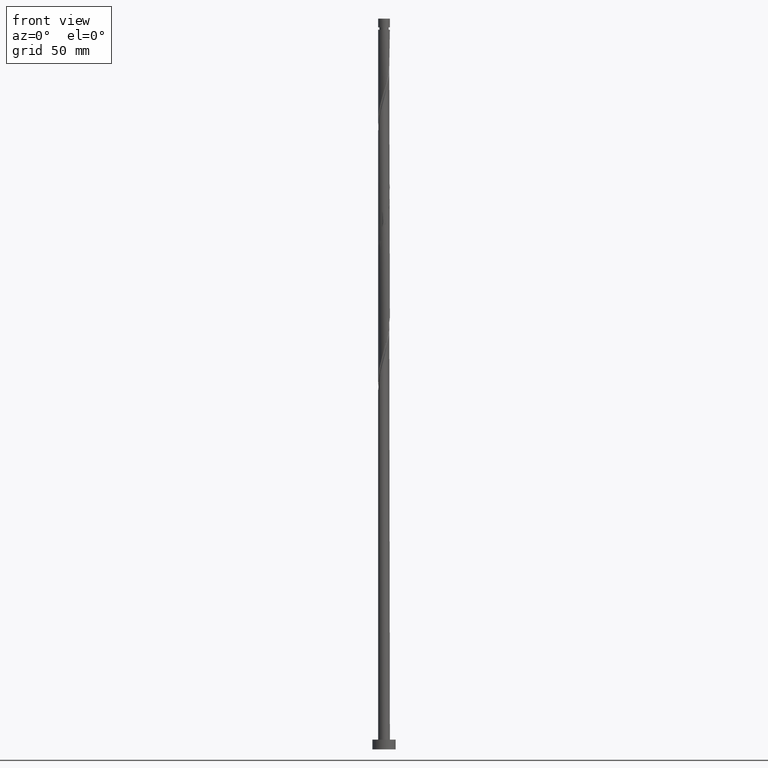
[diagram: clean part render]
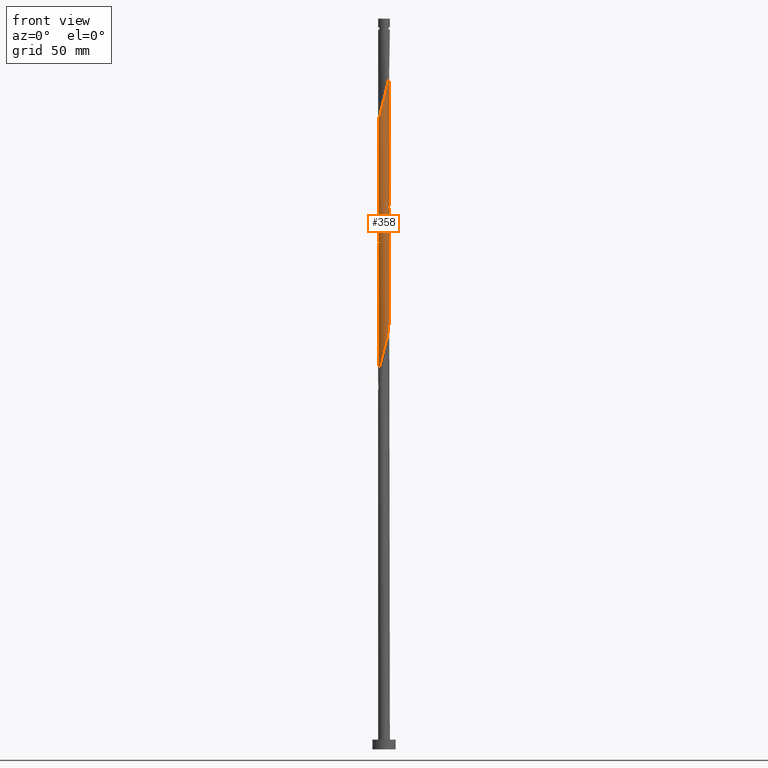
[diagram: same view with one face highlighted and labeled with its STEP entity id]
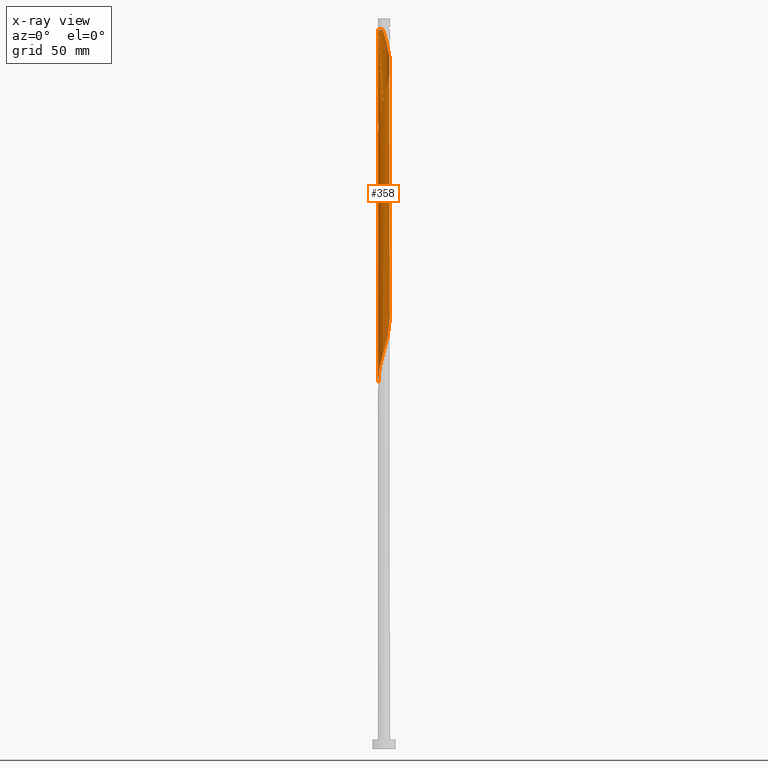
[diagram: x-ray of the same camera — body ghosted, the highlighted face saturated]
A machine part, front view. The second image highlights one B-rep face of the part: STEP entity #358.
The next image is the same camera in x-ray: the body ghosted, the highlighted face saturated — about 0% of this face is hidden behind the body in this view.
In plain terms, the highlighted cylindrical surface (bore or boss wall) has radius 3 mm, axis along (-0, -0, -1).
Its self-contained STEP definition (entity closure, byte-faithful):
#2 = CARTESIAN_POINT ( 'NONE',  ( 0.2879860105828859207, 3.002746436205627756, 304.4682028779818097 ) ) ;
#5 = CARTESIAN_POINT ( 'NONE',  ( 2.956194341916741575, 0.6002808636434363576, 353.3570917668706670 ) ) ;
#18 = CARTESIAN_POINT ( 'NONE',  ( 0.9059989139450633777, -2.877253563794377023, 337.8015362113151241 ) ) ;
#25 = CARTESIAN_POINT ( 'NONE',  ( 0.9582386936374892583, -2.860279830445433991, 275.5793139890928956 ) ) ;
#29 = CARTESIAN_POINT ( 'NONE',  ( -2.956194341916741575, -0.6002808636434368017, 320.0237584335374095 ) ) ;
#34 =( BOUNDED_CURVE ( )  B_SPLINE_CURVE ( 2, ( #460, #724, #1482, #737, #877, #161, #885, #295, #450, #1313, #1463, #1145, #756, #25, #1744, #605, #1891, #432, #1023, #612, #587, #1733, #418, #1157, #1756, #441, #364, #1799, #912, #1494, #325, #191, #1194, #799, #1213, #622, #776, #1079, #1811, #1677, #767, #1046, #1386, #337, #1375, #808, #354, #1514, #1353, #173, #71, #491, #1185, #940, #1205, #60, #1531, #1054, #1647, #1780, #787, #655, #1063, #1665, #1222, #1363, #182, #903, #1504, #44, #469, #212, #1524, #1071, #1638, #632, #1820, #1655, #1341, #920, #347, #513, #52, #36, #643, #501, #1790, #931, #481, #202, #393, #970, #1562 ),
 .UNSPECIFIED., .F., .T. ) 
 B_SPLINE_CURVE_WITH_KNOTS ( ( 3, 2, 2, 2, 2, 2, 2, 2, 2, 2, 2, 2, 2, 2, 2, 2, 2, 2, 2, 2, 2, 2, 2, 2, 2, 2, 2, 2, 2, 2, 2, 2, 2, 2, 2, 2, 2, 2, 2, 2, 2, 2, 2, 2, 2, 2, 3 ),
 ( 0.5545286012773114059, 0.5583333333333333481, 0.5666666666666666519, 0.5749999999999999556, 0.5833333333333333703, 0.5916666666666666741, 0.5999999999999999778, 0.6083333333333332815, 0.6166666666666666963, 0.6250000000000000000, 0.6333333333333333037, 0.6416666666666667185, 0.6500000000000000222, 0.6583333333333333259, 0.6666666666666666297, 0.6750000000000000444, 0.6833333333333333481, 0.6916666666666666519, 0.6999999999999999556, 0.7083333333333333703, 0.7166666666666666741, 0.7249999999999999778, 0.7333333333333332815, 0.7416666666666666963, 0.7500000000000000000, 0.7583333333333333037, 0.7666666666666667185, 0.7750000000000000222, 0.7833333333333333259, 0.7916666666666666297, 0.8000000000000000444, 0.8083333333333333481, 0.8166666666666666519, 0.8249999999999999556, 0.8333333333333333703, 0.8416666666666666741, 0.8499999999999999778, 0.8583333333333332815, 0.8666666666666666963, 0.8750000000000000000, 0.8833333333333333037, 0.8916666666666668295, 0.9000000000000001332, 0.9083333333333334370, 0.9166666666666667407, 0.9250000000000000444, 0.9295286012773114059 ),
 .UNSPECIFIED. ) 
 CURVE ( )  GEOMETRIC_REPRESENTATION_ITEM ( )  RATIONAL_B_SPLINE_CURVE ( ( 0.9066196499552419130, 0.9068171577856546373, 0.9090909090909534696, 0.9041108139712019653, 0.9090909090909534696, 0.9041108139712019653, 0.9090909090909534696, 0.9041108139712019653, 0.9090909090909534696, 0.9041108139712019653, 0.9090909090909534696, 0.9041108139712019653, 0.9090909090909534696, 0.9041108139712019653, 0.9090909090909534696, 0.9041108139712019653, 0.9090909090909534696, 0.9041108139712019653, 0.9090909090909534696, 0.9041108139712019653, 0.9090909090909534696, 0.9041108139712019653, 0.9090909090909534696, 0.9041108139712019653, 0.9090909090909534696, 0.9041108139712019653, 0.9090909090909534696, 0.9041108139712019653, 0.9090909090909534696, 0.9041108139712019653, 0.9090909090909534696, 0.9041108139712019653, 0.9090909090909534696, 0.9041108139712019653, 0.9090909090909534696, 0.9041108139712019653, 0.9090909090909534696, 0.9041108139712019653, 0.9090909090909534696, 0.9041108139712019653, 0.9090909090909534696, 0.9041108139712019653, 0.9090909090909534696, 0.9041108139712019653, 0.9090909090909534696, 0.9041108139712019653, 0.9090909090909534696, 0.9041108139712019653, 0.9090909090909534696, 0.9041108139712019653, 0.9090909090909534696, 0.9041108139712019653, 0.9090909090909534696, 0.9041108139712019653, 0.9090909090909534696, 0.9041108139712019653, 0.9090909090909534696, 0.9041108139712019653, 0.9090909090909534696, 0.9041108139712019653, 0.9090909090909534696, 0.9041108139712019653, 0.9090909090909534696, 0.9041108139712019653, 0.9090909090909534696, 0.9041108139712019653, 0.9090909090909534696, 0.9041108139712019653, 0.9090909090909534696, 0.9041108139712019653, 0.9090909090909534696, 0.9041108139712019653, 0.9090909090909534696, 0.9041108139712019653, 0.9090909090909534696, 0.9041108139712019653, 0.9090909090909534696, 0.9041108139712019653, 0.9090909090909534696, 0.9041108139712019653, 0.9090909090909534696, 0.9041108139712019653, 0.9090909090909534696, 0.9041108139712019653, 0.9090909090909534696, 0.9041108139712019653, 0.9090909090909534696, 0.9041108139712019653, 0.9090909090909534696, 0.9041108139712019653, 0.9090909090909534696, 0.9063845652765007976, 0.9066196499552419130 ) ) 
 REPRESENTATION_ITEM ( '' )  );
#36 = CARTESIAN_POINT ( 'NONE',  ( -1.997955648279248209, -2.259998966801996190, 197.8015362113151809 ) ) ;
#44 = CARTESIAN_POINT ( 'NONE',  ( 2.038775222402703591, -2.223244857174722533, 213.3570917668706954 ) ) ;
#52 = CARTESIAN_POINT ( 'NONE',  ( -1.741185482790979400, -2.443004935426440483, 198.9126473224262952 ) ) ;
#60 = CARTESIAN_POINT ( 'NONE',  ( 2.424175730171094223, 1.795214230025620417, 228.9126473224262668 ) ) ;
#65 = CARTESIAN_POINT ( 'NONE',  ( 3.000000000000000444, 3.673940397442060361E-16, 375.6999999999999886 ) ) ;
#67 = DIRECTION ( 'NONE',  ( -0.000000000000000000, -0.000000000000000000, -1.000000000000000000 ) ) ;
#71 = CARTESIAN_POINT ( 'NONE',  ( 1.195207115623888150, 2.751632233922627346, 234.4682028779818950 ) ) ;
#105 =( BOUNDED_CURVE ( )  B_SPLINE_CURVE ( 2, ( #579, #872, #759, #29, #328, #608, #1180, #1775, #1748, #436, #616, #1885, #599, #1611, #1460, #1009, #890, #1160, #1485, #18, #1018, #1783, #1037, #473, #143, #1631, #298, #1466, #150, #310, #740, #1317, #319, #5, #1169, #453, #898, #1028, #1623, #1476, #164, #1236, #1083, #1357, #1545, #916, #1209, #1066, #1095 ),
 .UNSPECIFIED., .F., .T. ) 
 B_SPLINE_CURVE_WITH_KNOTS ( ( 3, 2, 2, 2, 2, 2, 2, 2, 2, 2, 2, 2, 2, 2, 2, 2, 2, 2, 2, 2, 2, 2, 2, 2, 3 ),
 ( 0.5545286012773114059, 0.5583333333333333481, 0.5666666666666666519, 0.5749999999999999556, 0.5833333333333332593, 0.5916666666666667851, 0.6000000000000000888, 0.6083333333333335036, 0.6166666666666668073, 0.6250000000000001110, 0.6333333333333334147, 0.6416666666666667185, 0.6500000000000001332, 0.6583333333333335480, 0.6666666666666669627, 0.6750000000000002665, 0.6833333333333335702, 0.6916666666666668739, 0.7000000000000001776, 0.7083333333333334814, 0.7166666666666670071, 0.7250000000000003109, 0.7333333333333337256, 0.7416666666666670293, 0.7500000000000003331 ),
 .UNSPECIFIED. ) 
 CURVE ( )  GEOMETRIC_REPRESENTATION_ITEM ( )  RATIONAL_B_SPLINE_CURVE ( ( 0.9066196499552482413, 0.9068171577856609655, 0.9090909090909599088, 0.9041108139712081826, 0.9090909090909599088, 0.9041108139712081826, 0.9090909090909599088, 0.9041108139712081826, 0.9090909090909599088, 0.9041108139712081826, 0.9090909090909599088, 0.9041108139712081826, 0.9090909090909599088, 0.9041108139712081826, 0.9090909090909599088, 0.9041108139712081826, 0.9090909090909599088, 0.9041108139712081826, 0.9090909090909599088, 0.9041108139712081826, 0.9090909090909599088, 0.9041108139712081826, 0.9090909090909599088, 0.9041108139712081826, 0.9090909090909599088, 0.9041108139712081826, 0.9090909090909599088, 0.9041108139712081826, 0.9090909090909599088, 0.9041108139712081826, 0.9090909090909599088, 0.9041108139712081826, 0.9090909090909599088, 0.9041108139712081826, 0.9090909090909599088, 0.9041108139712081826, 0.9090909090909599088, 0.9041108139712081826, 0.9090909090909599088, 0.9041108139712081826, 0.9090909090909599088, 0.9041108139712081826, 0.9090909090909599088, 0.9041108139712081826, 0.9090909090909599088, 0.9041108139712081826, 0.9090909090909599088, 0.9041108139712079605, 0.9090909090909601309 ) ) 
 REPRESENTATION_ITEM ( '' )  );
#113 = CARTESIAN_POINT ( 'NONE',  ( -2.861491667719897602, 0.9010357570982424624, 318.9126473224263805 ) ) ;
#140 = CARTESIAN_POINT ( 'NONE',  ( 1.484415317302709703, 2.626010904050883443, 300.0237584335374095 ) ) ;
#143 = CARTESIAN_POINT ( 'NONE',  ( 2.211065689225174324, -2.027606598413813632, 343.3570917668708375 ) ) ;
#147 = CARTESIAN_POINT ( 'NONE',  ( -1.785379858637177630, 2.410895841875524859, 312.2459806557596949 ) ) ;
#150 = CARTESIAN_POINT ( 'NONE',  ( 2.844610918258241306, -0.9529893618115785614, 347.8015362113152378 ) ) ;
#153 = CARTESIAN_POINT ( 'NONE',  ( 0.9059989139450659312, 2.877253563794370361, 302.2459806557595812 ) ) ;
#161 = CARTESIAN_POINT ( 'NONE',  ( 2.766788993523056295, -1.201790650553047790, 284.4682028779818665 ) ) ;
#164 = CARTESIAN_POINT ( 'NONE',  ( 1.785379858637182515, 2.410895841875527079, 361.1348695446486090 ) ) ;
#171 =( BOUNDED_CURVE ( )  B_SPLINE_CURVE ( 2, ( #1123, #406, #1574, #258, #113, #703, #1275, #996, #574, #287, #147, #1005, #1166, #1608, #595, #1589, #1331, #2, #861, #153, #869, #140, #1293, #1456, #1599, #307, #1323, #1015, #1175, #1762, #1472, #316, #277 ),
 .UNSPECIFIED., .F., .T. ) 
 B_SPLINE_CURVE_WITH_KNOTS ( ( 3, 2, 2, 2, 2, 2, 2, 2, 2, 2, 2, 2, 2, 2, 2, 2, 3 ),
 ( 0.4295286012773115170, 0.4333333333333333481, 0.4416666666666666519, 0.4500000000000000111, 0.4583333333333333148, 0.4666666666666666741, 0.4749999999999999778, 0.4833333333333333370, 0.4916666666666666408, 0.5000000000000000000, 0.5083333333333333037, 0.5166666666666667185, 0.5250000000000000222, 0.5333333333333333259, 0.5416666666666666297, 0.5500000000000000444, 0.5545286012773114059 ),
 .UNSPECIFIED. ) 
 CURVE ( )  GEOMETRIC_REPRESENTATION_ITEM ( )  RATIONAL_B_SPLINE_CURVE ( ( 0.9066196499552419130, 0.9068171577856547483, 0.9090909090909534696, 0.9041108139712019653, 0.9090909090909534696, 0.9041108139712019653, 0.9090909090909534696, 0.9041108139712019653, 0.9090909090909534696, 0.9041108139712019653, 0.9090909090909534696, 0.9041108139712019653, 0.9090909090909534696, 0.9041108139712019653, 0.9090909090909534696, 0.9041108139712019653, 0.9090909090909534696, 0.9041108139712019653, 0.9090909090909534696, 0.9041108139712019653, 0.9090909090909534696, 0.9041108139712019653, 0.9090909090909534696, 0.9041108139712019653, 0.9090909090909534696, 0.9041108139712019653, 0.9090909090909534696, 0.9041108139712019653, 0.9090909090909534696, 0.9041108139712019653, 0.9090909090909534696, 0.9063845652765007976, 0.9066196499552419130 ) ) 
 REPRESENTATION_ITEM ( '' )  );
#173 = CARTESIAN_POINT ( 'NONE',  ( 0.9059989139450659312, 2.877253563794370361, 235.5793139890929240 ) ) ;
#182 = CARTESIAN_POINT ( 'NONE',  ( 2.611625341554438595, -1.476283534877587567, 216.6904251002041519 ) ) ;
#191 = CARTESIAN_POINT ( 'NONE',  ( -3.016399812174358708, -0.02746407747455745230, 255.5793139890929524 ) ) ;
#202 = CARTESIAN_POINT ( 'NONE',  ( -2.944774136347767524, -0.6540087066196486054, 191.1348695446485237 ) ) ;
#212 = CARTESIAN_POINT ( 'NONE',  ( 1.531984494871650115, -2.598546826576326296, 211.1348695446485522 ) ) ;
#221 = DIRECTION ( 'NONE',  ( -0.000000000000000000, -0.000000000000000000, -1.000000000000000000 ) ) ;
#224 = ORIENTED_EDGE ( 'NONE', *, *, #1597, .F. ) ;
#252 = EDGE_LOOP ( 'NONE', ( #1479, #581, #1887, #1606, #1696, #1578, #1099, #224 ) ) ;
#258 = CARTESIAN_POINT ( 'NONE',  ( -2.956194341916736246, 0.6002808636434366907, 320.0237584335374095 ) ) ;
#270 = CARTESIAN_POINT ( 'NONE',  ( -2.999999999999967581, 0.000000000000000000, 370.0237584335374095 ) ) ;
#277 = CARTESIAN_POINT ( 'NONE',  ( 3.000000000000000444, 2.376798051885728846E-15, 288.8158683437255831 ) ) ;
#287 = CARTESIAN_POINT ( 'NONE',  ( -2.038775222402704035, 2.223244857174722089, 313.3570917668707807 ) ) ;
#295 = CARTESIAN_POINT ( 'NONE',  ( 2.456461689585818231, -1.750776419202129119, 282.2459806557596380 ) ) ;
#298 = CARTESIAN_POINT ( 'NONE',  ( 2.584311715169902879, -1.523592123514565300, 345.5793139890931229 ) ) ;
#307 = CARTESIAN_POINT ( 'NONE',  ( 2.424175730171094223, 1.795214230025620417, 295.5793139890928956 ) ) ;
#310 = CARTESIAN_POINT ( 'NONE',  ( 2.944774136347771076, -0.6540087066196530463, 348.9126473224262099 ) ) ;
#316 = CARTESIAN_POINT ( 'NONE',  ( 2.999999999999999112, 0.1709212123392978011, 289.4214596531101051 ) ) ;
#319 = CARTESIAN_POINT ( 'NONE',  ( 2.986297077045554360, 0.2864083930844369963, 352.2459806557597517 ) ) ;
#325 = CARTESIAN_POINT ( 'NONE',  ( -2.980586974261063560, -0.3407363920471033758, 256.6904251002040951 ) ) ;
#328 = CARTESIAN_POINT ( 'NONE',  ( -2.861491667719902932, -0.9010357570982425734, 321.1348695446487227 ) ) ;
#337 = CARTESIAN_POINT ( 'NONE',  ( -0.9582386936374899244, 2.860279830445433547, 242.2459806557596096 ) ) ;
#347 = CARTESIAN_POINT ( 'NONE',  ( -1.195207115623887706, -2.751632233922627346, 201.1348695446485806 ) ) ;
#354 = CARTESIAN_POINT ( 'NONE',  ( -0.02731362638453839475, 2.999875658392148647, 238.9126473224263805 ) ) ;
#358 = ADVANCED_FACE ( 'NONE', ( #946 ), #508, .T. ) ;
#360 = CARTESIAN_POINT ( 'NONE',  ( 0.000000000000000000, 0.000000000000000000, 375.6999999999999886 ) ) ;
#364 = CARTESIAN_POINT ( 'NONE',  ( -2.584311715169901102, -1.523592123514560637, 261.1348695446486090 ) ) ;
#384 = EDGE_CURVE ( 'NONE', #416, #1162, #1542, .T. ) ;
#393 = CARTESIAN_POINT ( 'NONE',  ( -2.980586974261063560, -0.3407363920471033758, 190.0237584335374095 ) ) ;
#406 = CARTESIAN_POINT ( 'NONE',  ( -2.999999999999999556, 0.1435319978602528357, 321.6406531514948597 ) ) ;
#416 = VERTEX_POINT ( 'NONE', #270 ) ;
#418 = CARTESIAN_POINT ( 'NONE',  ( -1.741185482790979400, -2.443004935426440483, 265.5793139890929524 ) ) ;
#432 = CARTESIAN_POINT ( 'NONE',  ( -0.2879860105828870864, -3.002746436205628200, 271.1348695446484953 ) ) ;
#436 = CARTESIAN_POINT ( 'NONE',  ( -2.038775222402707588, -2.223244857174723421, 326.6904251002041519 ) ) ;
#439 = EDGE_CURVE ( 'NONE', #416, #1674, #1125, .T. ) ;
#441 = CARTESIAN_POINT ( 'NONE',  ( -2.424175730171094223, -1.795214230025622193, 262.2459806557595812 ) ) ;
#450 = CARTESIAN_POINT ( 'NONE',  ( 2.247618455994261133, -1.987010638188425604, 281.1348695446486090 ) ) ;
#453 = CARTESIAN_POINT ( 'NONE',  ( 2.766788993523062068, 1.201790650553046014, 355.5793139890930092 ) ) ;
#460 = CARTESIAN_POINT ( 'NONE',  ( 3.000000000000000444, 2.376798051885728846E-15, 288.8158683437255831 ) ) ;
#469 = CARTESIAN_POINT ( 'NONE',  ( 1.785379858637177630, -2.410895841875525303, 212.2459806557596380 ) ) ;
#473 = CARTESIAN_POINT ( 'NONE',  ( 1.997955648279249763, -2.259998966802001963, 342.2459806557596380 ) ) ;
#481 = CARTESIAN_POINT ( 'NONE',  ( -2.844610918258236865, -0.9529893618115744536, 192.2459806557596664 ) ) ;
#491 = CARTESIAN_POINT ( 'NONE',  ( 1.484415317302709703, 2.626010904050883443, 233.3570917668706954 ) ) ;
#501 = CARTESIAN_POINT ( 'NONE',  ( -2.424175730171094223, -1.795214230025622193, 195.5793139890929524 ) ) ;
#508 = CYLINDRICAL_SURFACE ( 'NONE', #1786, 3.000000000000000444 ) ;
#513 = CARTESIAN_POINT ( 'NONE',  ( -1.484415317302709481, -2.626010904050883443, 200.0237584335373811 ) ) ;
#515 = LINE ( 'NONE', #1657, #638 ) ;
#545 = VERTEX_POINT ( 'NONE', #719 ) ;
#574 = CARTESIAN_POINT ( 'NONE',  ( -2.247618455994262021, 1.987010638188425382, 314.4682028779818665 ) ) ;
#575 = VECTOR ( 'NONE', #825, 1000.000000000000000 ) ;
#579 = CARTESIAN_POINT ( 'NONE',  ( -3.000000000000005773, -1.136079571970528976E-15, 317.8983151900158646 ) ) ;
#581 = ORIENTED_EDGE ( 'NONE', *, *, #384, .T. ) ;
#587 = CARTESIAN_POINT ( 'NONE',  ( -1.195207115623887706, -2.751632233922627346, 267.8015362113151809 ) ) ;
#595 = CARTESIAN_POINT ( 'NONE',  ( -0.6504259784947264977, 2.928642355512052653, 307.8015362113152946 ) ) ;
#599 = CARTESIAN_POINT ( 'NONE',  ( -1.245111594254573628, -2.729413328510884806, 330.0237584335375232 ) ) ;
#605 = CARTESIAN_POINT ( 'NONE',  ( 0.3426132633519626269, -2.997004880578669095, 273.3570917668707239 ) ) ;
#608 = CARTESIAN_POINT ( 'NONE',  ( -2.766788993523061624, -1.201790650553047790, 322.2459806557596949 ) ) ;
#612 = CARTESIAN_POINT ( 'NONE',  ( -0.9059989139450641549, -2.877253563794370805, 268.9126473224262668 ) ) ;
#616 = CARTESIAN_POINT ( 'NONE',  ( -1.785379858637182515, -2.410895841875527079, 327.8015362113153515 ) ) ;
#622 = CARTESIAN_POINT ( 'NONE',  ( -2.766788993523056295, 1.201790650553046902, 251.1348695446485237 ) ) ;
#625 = CARTESIAN_POINT ( 'NONE',  ( -0.5969924622640613299, 2.940000000000868585, 370.0237584335374095 ) ) ;
#632 = CARTESIAN_POINT ( 'NONE',  ( 0.3426132633519626269, -2.997004880578669095, 206.6904251002040667 ) ) ;
#638 = VECTOR ( 'NONE', #1792, 1000.000000000000000 ) ;
#643 = CARTESIAN_POINT ( 'NONE',  ( -2.211065689225171660, -2.027606598413810524, 196.6904251002040951 ) ) ;
#655 = CARTESIAN_POINT ( 'NONE',  ( 3.016399812174359596, 0.02746407747455564125, 222.2459806557596380 ) ) ;
#661 = CARTESIAN_POINT ( 'NONE',  ( 0.000000000000000000, 0.000000000000000000, 370.0237584335374095 ) ) ;
#679 = EDGE_CURVE ( 'NONE', #984, #1162, #105, .T. ) ;
#703 = CARTESIAN_POINT ( 'NONE',  ( -2.766788993523056295, 1.201790650553046902, 317.8015362113151241 ) ) ;
#719 = CARTESIAN_POINT ( 'NONE',  ( -3.000000000000000000, -3.632464947221585111E-15, 188.8158683437255831 ) ) ;
#724 = CARTESIAN_POINT ( 'NONE',  ( 3.000000000000000000, -0.1435319978602490054, 288.3073198181614885 ) ) ;
#737 = CARTESIAN_POINT ( 'NONE',  ( 2.956194341916736246, -0.6002808636434368017, 286.6904251002039814 ) ) ;
#740 = CARTESIAN_POINT ( 'NONE',  ( 2.980586974261068889, -0.3407363920471051522, 350.0237584335374663 ) ) ;
#756 = CARTESIAN_POINT ( 'NONE',  ( 1.245111594254570742, -2.729413328510880365, 276.6904251002042088 ) ) ;
#759 = CARTESIAN_POINT ( 'NONE',  ( -2.986297077045554360, -0.2864083930844386616, 318.9126473224263805 ) ) ;
#767 = CARTESIAN_POINT ( 'NONE',  ( -1.785379858637177630, 2.410895841875524859, 245.5793139890930092 ) ) ;
#776 = CARTESIAN_POINT ( 'NONE',  ( -2.611625341554438595, 1.476283534877587345, 250.0237584335374663 ) ) ;
#787 = CARTESIAN_POINT ( 'NONE',  ( 2.980586974261063560, 0.3407363920471031538, 223.3570917668708091 ) ) ;
#799 = CARTESIAN_POINT ( 'NONE',  ( -2.956194341916736246, 0.6002808636434366907, 253.3570917668707239 ) ) ;
#808 = CARTESIAN_POINT ( 'NONE',  ( -0.3426132633519629600, 2.997004880578668207, 240.0237584335373526 ) ) ;
#815 = DIRECTION ( 'NONE',  ( -1.000000000000000000, 0.000000000000000000, 0.000000000000000000 ) ) ;
#825 = DIRECTION ( 'NONE',  ( -0.000000000000000000, -0.000000000000000000, -1.000000000000000000 ) ) ;
#848 = VERTEX_POINT ( 'NONE', #1404 ) ;
#861 = CARTESIAN_POINT ( 'NONE',  ( 0.5969924622639752876, 2.939999999999999947, 303.3570917668708375 ) ) ;
#869 = CARTESIAN_POINT ( 'NONE',  ( 1.195207115623888150, 2.751632233922627346, 301.1348695446485522 ) ) ;
#872 = CARTESIAN_POINT ( 'NONE',  ( -3.000000000000005329, -0.1435319978602463964, 318.4068637155799024 ) ) ;
#877 = CARTESIAN_POINT ( 'NONE',  ( 2.861491667719897602, -0.9010357570982439057, 285.5793139890930092 ) ) ;
#885 = CARTESIAN_POINT ( 'NONE',  ( 2.611625341554438595, -1.476283534877587567, 283.3570917668707239 ) ) ;
#890 = CARTESIAN_POINT ( 'NONE',  ( -0.02731362638454028560, -2.999875658392153532, 334.4682028779819234 ) ) ;
#892 = EDGE_CURVE ( 'NONE', #1854, #848, #1838, .T. ) ;
#898 = CARTESIAN_POINT ( 'NONE',  ( 2.611625341554443480, 1.476283534877589121, 356.6904251002042088 ) ) ;
#903 = CARTESIAN_POINT ( 'NONE',  ( 2.456461689585818231, -1.750776419202129119, 215.5793139890929808 ) ) ;
#912 = CARTESIAN_POINT ( 'NONE',  ( -2.844610918258236865, -0.9529893618115744536, 258.9126473224263236 ) ) ;
#916 = CARTESIAN_POINT ( 'NONE',  ( 0.3426132633519647919, 2.997004880578674424, 366.6904251002039814 ) ) ;
#920 = CARTESIAN_POINT ( 'NONE',  ( -0.9059989139450641549, -2.877253563794370805, 202.2459806557596664 ) ) ;
#931 = CARTESIAN_POINT ( 'NONE',  ( -2.744447700168706206, -1.251970017003500413, 193.3570917668707523 ) ) ;
#940 = CARTESIAN_POINT ( 'NONE',  ( 1.997955648279248431, 2.259998966801995746, 231.1348695446484669 ) ) ;
#946 = FACE_OUTER_BOUND ( 'NONE', #252, .T. ) ;
#970 = CARTESIAN_POINT ( 'NONE',  ( -2.999999999999999112, -0.1709212123392989391, 189.4214596531100767 ) ) ;
#975 = CARTESIAN_POINT ( 'NONE',  ( -3.000000000000005773, -1.136079571970528976E-15, 317.8983151900158646 ) ) ;
#984 = VERTEX_POINT ( 'NONE', #975 ) ;
#996 = CARTESIAN_POINT ( 'NONE',  ( -2.456461689585819563, 1.750776419202127565, 315.5793139890928956 ) ) ;
#1005 = CARTESIAN_POINT ( 'NONE',  ( -1.531984494871650559, 2.598546826576326296, 311.1348695446485522 ) ) ;
#1009 = CARTESIAN_POINT ( 'NONE',  ( -0.3426132633519642923, -2.997004880578674424, 333.3570917668707807 ) ) ;
#1015 = CARTESIAN_POINT ( 'NONE',  ( 2.744447700168706206, 1.251970017003499747, 293.3570917668706670 ) ) ;
#1018 = CARTESIAN_POINT ( 'NONE',  ( 1.195207115623887262, -2.751632233922633120, 338.9126473224263805 ) ) ;
#1023 = CARTESIAN_POINT ( 'NONE',  ( -0.5969924622639750655, -2.939999999999999947, 270.0237584335374663 ) ) ;
#1028 = CARTESIAN_POINT ( 'NONE',  ( 2.456461689585824448, 1.750776419202128675, 357.8015362113151809 ) ) ;
#1034 = CARTESIAN_POINT ( 'NONE',  ( -2.999999999999999556, -1.689170942535140422E-15, 322.1492016770588407 ) ) ;
#1037 = CARTESIAN_POINT ( 'NONE',  ( 1.741185482790979844, -2.443004935426445812, 341.1348695446485522 ) ) ;
#1046 = CARTESIAN_POINT ( 'NONE',  ( -1.531984494871650559, 2.598546826576326296, 244.4682028779818097 ) ) ;
#1054 = CARTESIAN_POINT ( 'NONE',  ( 2.744447700168706206, 1.251970017003499747, 226.6904251002040382 ) ) ;
#1060 = DIRECTION ( 'NONE',  ( -1.000000000000000000, 0.000000000000000000, 0.000000000000000000 ) ) ;
#1063 = CARTESIAN_POINT ( 'NONE',  ( 2.986297077045549919, -0.2864083930844407710, 221.1348695446485806 ) ) ;
#1066 = CARTESIAN_POINT ( 'NONE',  ( -0.2879860105828960792, 3.002746436205633529, 368.9126473224264942 ) ) ;
#1071 = CARTESIAN_POINT ( 'NONE',  ( 0.9582386936374892583, -2.860279830445433991, 208.9126473224262668 ) ) ;
#1079 = CARTESIAN_POINT ( 'NONE',  ( -2.456461689585819563, 1.750776419202127565, 248.9126473224262668 ) ) ;
#1083 = CARTESIAN_POINT ( 'NONE',  ( 1.245111594254574072, 2.729413328510884806, 363.3570917668708375 ) ) ;
#1095 = CARTESIAN_POINT ( 'NONE',  ( -0.5969924622640613299, 2.940000000000868585, 370.0237584335373526 ) ) ;
#1099 = ORIENTED_EDGE ( 'NONE', *, *, #892, .T. ) ;
#1123 = CARTESIAN_POINT ( 'NONE',  ( -2.999999999999999556, -1.689170942535140422E-15, 322.1492016770588407 ) ) ;
#1125 = LINE ( 'NONE', #1418, #1206 ) ;
#1145 = CARTESIAN_POINT ( 'NONE',  ( 1.531984494871650115, -2.598546826576326296, 277.8015362113151809 ) ) ;
#1157 = CARTESIAN_POINT ( 'NONE',  ( -1.997955648279248209, -2.259998966801996190, 264.4682028779818097 ) ) ;
#1160 = CARTESIAN_POINT ( 'NONE',  ( 0.2879860105828850325, -3.002746436205632641, 335.5793139890928387 ) ) ;
#1162 = VERTEX_POINT ( 'NONE', #625 ) ;
#1166 = CARTESIAN_POINT ( 'NONE',  ( -1.245111594254570742, 2.729413328510880365, 310.0237584335374095 ) ) ;
#1169 = CARTESIAN_POINT ( 'NONE',  ( 2.861491667719902932, 0.9010357570982414632, 354.4682028779818665 ) ) ;
#1175 = CARTESIAN_POINT ( 'NONE',  ( 2.844610918258237309, 0.9529893618115728993, 292.2459806557596380 ) ) ;
#1180 = CARTESIAN_POINT ( 'NONE',  ( -2.611625341554443480, -1.476283534877589121, 323.3570917668707807 ) ) ;
#1185 = CARTESIAN_POINT ( 'NONE',  ( 1.741185482790980510, 2.443004935426439594, 232.2459806557596380 ) ) ;
#1194 = CARTESIAN_POINT ( 'NONE',  ( -2.986297077045549919, 0.2864083930844398274, 254.4682028779819518 ) ) ;
#1205 = CARTESIAN_POINT ( 'NONE',  ( 2.211065689225171660, 2.027606598413810524, 230.0237584335374095 ) ) ;
#1206 = VECTOR ( 'NONE', #1729, 1000.000000000000000 ) ;
#1209 = CARTESIAN_POINT ( 'NONE',  ( 0.02731362638454071234, 2.999875658392153532, 367.8015362113152946 ) ) ;
#1213 = CARTESIAN_POINT ( 'NONE',  ( -2.861491667719897602, 0.9010357570982424624, 252.2459806557597233 ) ) ;
#1222 = CARTESIAN_POINT ( 'NONE',  ( 2.861491667719897602, -0.9010357570982439057, 218.9126473224263520 ) ) ;
#1236 = CARTESIAN_POINT ( 'NONE',  ( 1.531984494871656111, 2.598546826576328517, 362.2459806557596949 ) ) ;
#1275 = CARTESIAN_POINT ( 'NONE',  ( -2.611625341554438595, 1.476283534877587345, 316.6904251002040951 ) ) ;
#1293 = CARTESIAN_POINT ( 'NONE',  ( 1.741185482790980510, 2.443004935426439594, 298.9126473224263805 ) ) ;
#1313 = CARTESIAN_POINT ( 'NONE',  ( 2.038775222402703591, -2.223244857174722533, 280.0237584335374095 ) ) ;
#1317 = CARTESIAN_POINT ( 'NONE',  ( 3.016399812174364481, -0.02746407747455986703, 351.1348695446484953 ) ) ;
#1323 = CARTESIAN_POINT ( 'NONE',  ( 2.584311715169900658, 1.523592123514560193, 294.4682028779818665 ) ) ;
#1331 = CARTESIAN_POINT ( 'NONE',  ( -0.02731362638453839475, 2.999875658392148647, 305.5793139890931229 ) ) ;
#1341 = CARTESIAN_POINT ( 'NONE',  ( -0.5969924622639750655, -2.939999999999999947, 203.3570917668707523 ) ) ;
#1345 = EDGE_CURVE ( 'NONE', #984, #545, #515, .T. ) ;
#1353 = CARTESIAN_POINT ( 'NONE',  ( 0.5969924622639752876, 2.939999999999999947, 236.6904251002040667 ) ) ;
#1357 = CARTESIAN_POINT ( 'NONE',  ( 0.9582386936374935882, 2.860279830445437543, 364.4682028779819802 ) ) ;
#1363 = CARTESIAN_POINT ( 'NONE',  ( 2.766788993523056295, -1.201790650553047790, 217.8015362113151525 ) ) ;
#1375 = CARTESIAN_POINT ( 'NONE',  ( -0.6504259784947264977, 2.928642355512052653, 241.1348695446485237 ) ) ;
#1386 = CARTESIAN_POINT ( 'NONE',  ( -1.245111594254570742, 2.729413328510880365, 243.3570917668707523 ) ) ;
#1404 = CARTESIAN_POINT ( 'NONE',  ( 3.000000000000000000, 2.376798051885728846E-15, 288.8158683437255831 ) ) ;
#1418 = CARTESIAN_POINT ( 'NONE',  ( -3.000000000000000444, 0.000000000000000000, 375.6999999999999886 ) ) ;
#1456 = CARTESIAN_POINT ( 'NONE',  ( 1.997955648279248431, 2.259998966801995746, 297.8015362113153515 ) ) ;
#1460 = CARTESIAN_POINT ( 'NONE',  ( -0.6504259784947288292, -2.928642355512056650, 332.2459806557596380 ) ) ;
#1463 = CARTESIAN_POINT ( 'NONE',  ( 1.785379858637177630, -2.410895841875525303, 278.9126473224263236 ) ) ;
#1466 = CARTESIAN_POINT ( 'NONE',  ( 2.744447700168709758, -1.251970017003503299, 346.6904251002040951 ) ) ;
#1472 = CARTESIAN_POINT ( 'NONE',  ( 2.980586974261063560, 0.3407363920471031538, 290.0237584335375232 ) ) ;
#1476 = CARTESIAN_POINT ( 'NONE',  ( 2.038775222402708476, 2.223244857174723421, 360.0237584335373526 ) ) ;
#1479 = ORIENTED_EDGE ( 'NONE', *, *, #439, .F. ) ;
#1482 = CARTESIAN_POINT ( 'NONE',  ( 2.986297077045549919, -0.2864083930844407710, 287.8015362113152946 ) ) ;
#1485 = CARTESIAN_POINT ( 'NONE',  ( 0.5969924622639748435, -2.940000000000004388, 336.6904251002041519 ) ) ;
#1494 = CARTESIAN_POINT ( 'NONE',  ( -2.944774136347767524, -0.6540087066196486054, 257.8015362113151241 ) ) ;
#1504 = CARTESIAN_POINT ( 'NONE',  ( 2.247618455994261133, -1.987010638188425604, 214.4682028779818665 ) ) ;
#1512 = AXIS2_PLACEMENT_3D ( 'NONE', #661, #221, #815 ) ;
#1514 = CARTESIAN_POINT ( 'NONE',  ( 0.2879860105828859207, 3.002746436205627756, 237.8015362113151809 ) ) ;
#1524 = CARTESIAN_POINT ( 'NONE',  ( 1.245111594254570742, -2.729413328510880365, 210.0237584335374379 ) ) ;
#1531 = CARTESIAN_POINT ( 'NONE',  ( 2.584311715169900658, 1.523592123514560193, 227.8015362113152094 ) ) ;
#1542 = CIRCLE ( 'NONE', #1512, 2.999999999999967581 ) ;
#1545 = CARTESIAN_POINT ( 'NONE',  ( 0.6504259784947304945, 2.928642355512055762, 365.5793139890931798 ) ) ;
#1562 = CARTESIAN_POINT ( 'NONE',  ( -3.000000000000000444, -3.632464947221585111E-15, 188.8158683437255831 ) ) ;
#1574 = CARTESIAN_POINT ( 'NONE',  ( -2.986297077045549919, 0.2864083930844398274, 321.1348695446486090 ) ) ;
#1578 = ORIENTED_EDGE ( 'NONE', *, *, #892, .F. ) ;
#1589 = CARTESIAN_POINT ( 'NONE',  ( -0.3426132633519629600, 2.997004880578668207, 306.6904251002040951 ) ) ;
#1597 = EDGE_CURVE ( 'NONE', #1674, #848, #171, .T. ) ;
#1599 = CARTESIAN_POINT ( 'NONE',  ( 2.211065689225171660, 2.027606598413810524, 296.6904251002041519 ) ) ;
#1606 = ORIENTED_EDGE ( 'NONE', *, *, #1345, .T. ) ;
#1608 = CARTESIAN_POINT ( 'NONE',  ( -0.9582386936374899244, 2.860279830445433547, 308.9126473224262099 ) ) ;
#1611 = CARTESIAN_POINT ( 'NONE',  ( -0.9582386936374930331, -2.860279830445437987, 331.1348695446485522 ) ) ;
#1623 = CARTESIAN_POINT ( 'NONE',  ( 2.247618455994267350, 1.987010638188426048, 358.9126473224264373 ) ) ;
#1631 = CARTESIAN_POINT ( 'NONE',  ( 2.424175730171096443, -1.795214230025626856, 344.4682028779818665 ) ) ;
#1638 = CARTESIAN_POINT ( 'NONE',  ( 0.6504259784947253875, -2.928642355512052653, 207.8015362113152094 ) ) ;
#1647 = CARTESIAN_POINT ( 'NONE',  ( 2.844610918258237309, 0.9529893618115728993, 225.5793139890930377 ) ) ;
#1655 = CARTESIAN_POINT ( 'NONE',  ( -0.2879860105828870864, -3.002746436205628200, 204.4682028779818381 ) ) ;
#1657 = CARTESIAN_POINT ( 'NONE',  ( -3.000000000000000444, 0.000000000000000000, 375.6999999999999886 ) ) ;
#1665 = CARTESIAN_POINT ( 'NONE',  ( 2.956194341916736246, -0.6002808636434368017, 220.0237584335373526 ) ) ;
#1674 = VERTEX_POINT ( 'NONE', #1034 ) ;
#1677 = CARTESIAN_POINT ( 'NONE',  ( -2.038775222402704035, 2.223244857174722089, 246.6904251002040098 ) ) ;
#1696 = ORIENTED_EDGE ( 'NONE', *, *, #1719, .F. ) ;
#1698 = CARTESIAN_POINT ( 'NONE',  ( 3.000000000000000444, 3.673940397442060361E-16, 370.0237584335374095 ) ) ;
#1719 = EDGE_CURVE ( 'NONE', #848, #545, #34, .T. ) ;
#1729 = DIRECTION ( 'NONE',  ( -0.000000000000000000, -0.000000000000000000, -1.000000000000000000 ) ) ;
#1733 = CARTESIAN_POINT ( 'NONE',  ( -1.484415317302709481, -2.626010904050883443, 266.6904251002040951 ) ) ;
#1744 = CARTESIAN_POINT ( 'NONE',  ( 0.6504259784947253875, -2.928642355512052653, 274.4682028779818665 ) ) ;
#1748 = CARTESIAN_POINT ( 'NONE',  ( -2.247618455994266462, -1.987010638188427381, 325.5793139890930661 ) ) ;
#1756 = CARTESIAN_POINT ( 'NONE',  ( -2.211065689225171660, -2.027606598413810524, 263.3570917668707807 ) ) ;
#1762 = CARTESIAN_POINT ( 'NONE',  ( 2.944774136347767524, 0.6540087066196478283, 291.1348695446485522 ) ) ;
#1775 = CARTESIAN_POINT ( 'NONE',  ( -2.456461689585824448, -1.750776419202129119, 324.4682028779818665 ) ) ;
#1780 = CARTESIAN_POINT ( 'NONE',  ( 2.944774136347767524, 0.6540087066196478283, 224.4682028779818381 ) ) ;
#1783 = CARTESIAN_POINT ( 'NONE',  ( 1.484415317302710369, -2.626010904050888772, 340.0237584335374095 ) ) ;
#1786 = AXIS2_PLACEMENT_3D ( 'NONE', #360, #67, #1060 ) ;
#1790 = CARTESIAN_POINT ( 'NONE',  ( -2.584311715169901102, -1.523592123514560637, 194.4682028779819234 ) ) ;
#1792 = DIRECTION ( 'NONE',  ( -0.000000000000000000, -0.000000000000000000, -1.000000000000000000 ) ) ;
#1799 = CARTESIAN_POINT ( 'NONE',  ( -2.744447700168706206, -1.251970017003500413, 260.0237584335374095 ) ) ;
#1811 = CARTESIAN_POINT ( 'NONE',  ( -2.247618455994262021, 1.987010638188425382, 247.8015362113152094 ) ) ;
#1820 = CARTESIAN_POINT ( 'NONE',  ( 0.02731362638453765229, -2.999875658392148647, 205.5793139890930092 ) ) ;
#1838 = LINE ( 'NONE', #65, #575 ) ;
#1854 = VERTEX_POINT ( 'NONE', #1698 ) ;
#1885 = CARTESIAN_POINT ( 'NONE',  ( -1.531984494871654334, -2.598546826576328961, 328.9126473224263805 ) ) ;
#1887 = ORIENTED_EDGE ( 'NONE', *, *, #679, .F. ) ;
#1891 = CARTESIAN_POINT ( 'NONE',  ( 0.02731362638453765229, -2.999875658392148647, 272.2459806557596949 ) ) ;